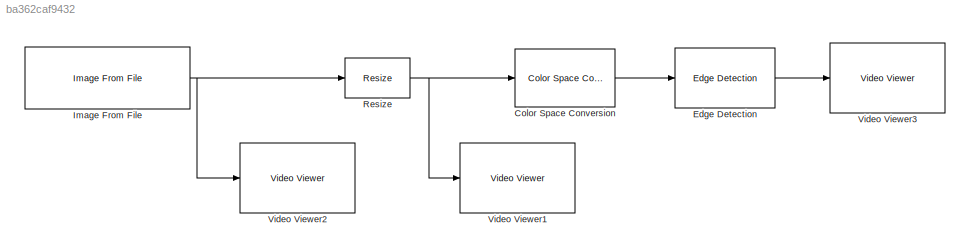
MODEL slx_ba362caf9432
KIND model
BLOCK [Reference] Color Space Conversion  REF=visionconversions/Color Space
 Conversion
  Ports = [1, 1]
  SourceBlock = visionconversions/Color Space\n Conversion
  SourceType = Color Space Conversion
  conversion = Obsolete
  conversionActive = R'G'B' to intensity
  imagePorts = One multidimensional signal
  rec = Rec. 601 (SDTV)
  sys = 1125/60/2:1
  wp_str = D65
BLOCK [Reference] Edge Detection  REF=visionanalysis/Edge Detection
  LockScale = off
  Ports = [1, 1]
  SourceBlock = visionanalysis/Edge Detection
  SourceType = Edge Detection
  accumFracLength = 8
  accumMode = Same as product output
  accumWordLength = 32
  autoPercent = 70
  edgeThinning = off
  method = Sobel
  outputFracLength = 4
  outputMode = Same as first input
  outputType = Binary image
  outputWordLength = 16
  overflowMode = off
  prodOutputFracLength = 8
  prodOutputMode = Binary point scaling
  prodOutputWordLength = 32
  roundingMode = Floor
  sigma = 1
  threshold = 20
  thresholdSource = Input port
  thresholdTuning = 4
  threshold_canny = [0.25 0.60]
  userDefinedThreshold = off
BLOCK [Reference] Image From File  REF=visionsources/Image From File
  FileName = peppers.png
  FractionLength = 15
  FractionLengthMode = User-defined
  ImageDataType = Inherit from input image
  OutPortLabels = R|G|B
  Ports = [0, 1]
  Signed = on
  SourceBlock = visionsources/Image From File
  SourceType = Image From File
  Tag = vipblks_nd
  Ts = inf
  WordLength = 16
  imagePorts = One multidimensional signal
  sdImageDataType = uint(8)
BLOCK [Reference] Resize  REF=visiongeotforms/Resize
  LockScale = off
  Ports = [1, 1]
  SourceBlock = visiongeotforms/Resize
  SourceType = Resize
  accumFracLength = 10
  accumMode = Same as product output
  accumWordLength = 32
  antialias = on
  firstCoeffFracLength = 31
  firstCoeffMode = Same word length as input
  firstCoeffWordLength = 32
  interp_method = Bilinear
  outCols = 25
  outRows = 25
  outRowsCols = [25 35]
  outputFracLength = 10
  outputMode = Same as input
  outputWordLength = 32
  overflowMode = on
  prodOutputFracLength = 10
  prodOutputMode = Binary point scaling
  prodOutputWordLength = 32
  rfactor = [50 50]
  roiFlag = off
  roundingMode = Nearest
  specify = Output size as a percentage of input size
  useROI = off
BLOCK [Reference] Video Viewer1  REF=visionsinks/Video Viewer
  AxisZoom = on
  DefaultConfigurationName = vipscopes.VideoViewerScopeCfg
  FigPos = [-34 619 410 337]
  OpenAtMdlStart = on
  Ports = [1]
  SourceBlock = visionsinks/Video Viewer
  SourceType = Video Viewer
  UserDataPersistent = on
  colormapValue = gray(256)
  imagePorts = One multidimensional signal
  inputType = Obsolete7b
  maxInputVal = 255
  minInputVal = 0
  specRange = off
  trueSizedOnce = off
  useColorMap = off
BLOCK [Reference] Video Viewer2  REF=visionsinks/Video Viewer
  AxisZoom = on
  DefaultConfigurationName = vipscopes.VideoViewerScopeCfg
  FigPos = [368 759 617 478]
  OpenAtMdlStart = on
  Ports = [1]
  SourceBlock = visionsinks/Video Viewer
  SourceType = Video Viewer
  UserDataPersistent = on
  colormapValue = gray(256)
  imagePorts = One multidimensional signal
  inputType = Obsolete7b
  maxInputVal = 255
  minInputVal = 0
  specRange = off
  trueSizedOnce = off
  useColorMap = off
BLOCK [Reference] Video Viewer3  REF=visionsinks/Video Viewer
  AxisZoom = on
  DefaultConfigurationName = vipscopes.VideoViewerScopeCfg
  FigPos = [970 641 410 328]
  OpenAtMdlStart = on
  Ports = [1]
  SourceBlock = visionsinks/Video Viewer
  SourceType = Video Viewer
  UserDataPersistent = on
  colormapValue = gray(256)
  imagePorts = One multidimensional signal
  inputType = Obsolete7b
  maxInputVal = 255
  minInputVal = 0
  specRange = off
  trueSizedOnce = off
  useColorMap = off
LINE Color Space Conversion:1 -> Edge Detection:1
LINE Edge Detection:1 -> Video Viewer3:1
NET Image From File:1 -> Resize:1, Video Viewer2:1
NET Resize:1 -> Color Space Conversion:1, Video Viewer1:1
note: NET lines group one-source signal fan-out (src -> all destinations, sorted); 1:1 wires keep LINE
